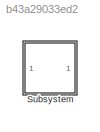
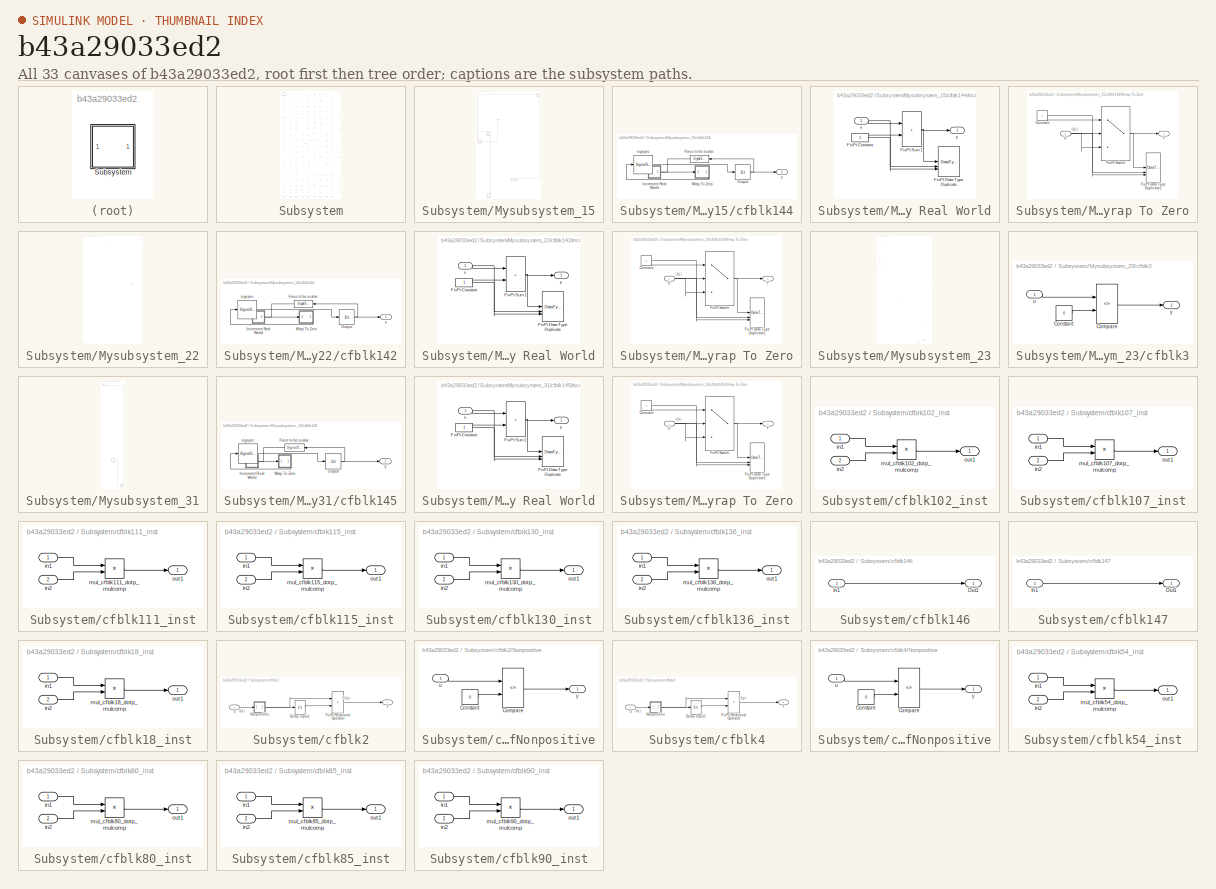
[diagram: thumbnail index - all 33 canvases of the model, root first then tree order]
MODEL slx_b43a29033ed2
KIND model
CONFIG AbsTol = auto
CONFIG EnableMultiTasking = off
CONFIG FixedStep = auto
CONFIG MaxStep = auto
CONFIG MinStep = auto
CONFIG RelTol = 1e-3
CONFIG SampleTimeConstraint = Unconstrained
CONFIG SolverName = VariableStepAuto
CONFIG StartTime = 0.0
CONFIG StopTime = 10.0
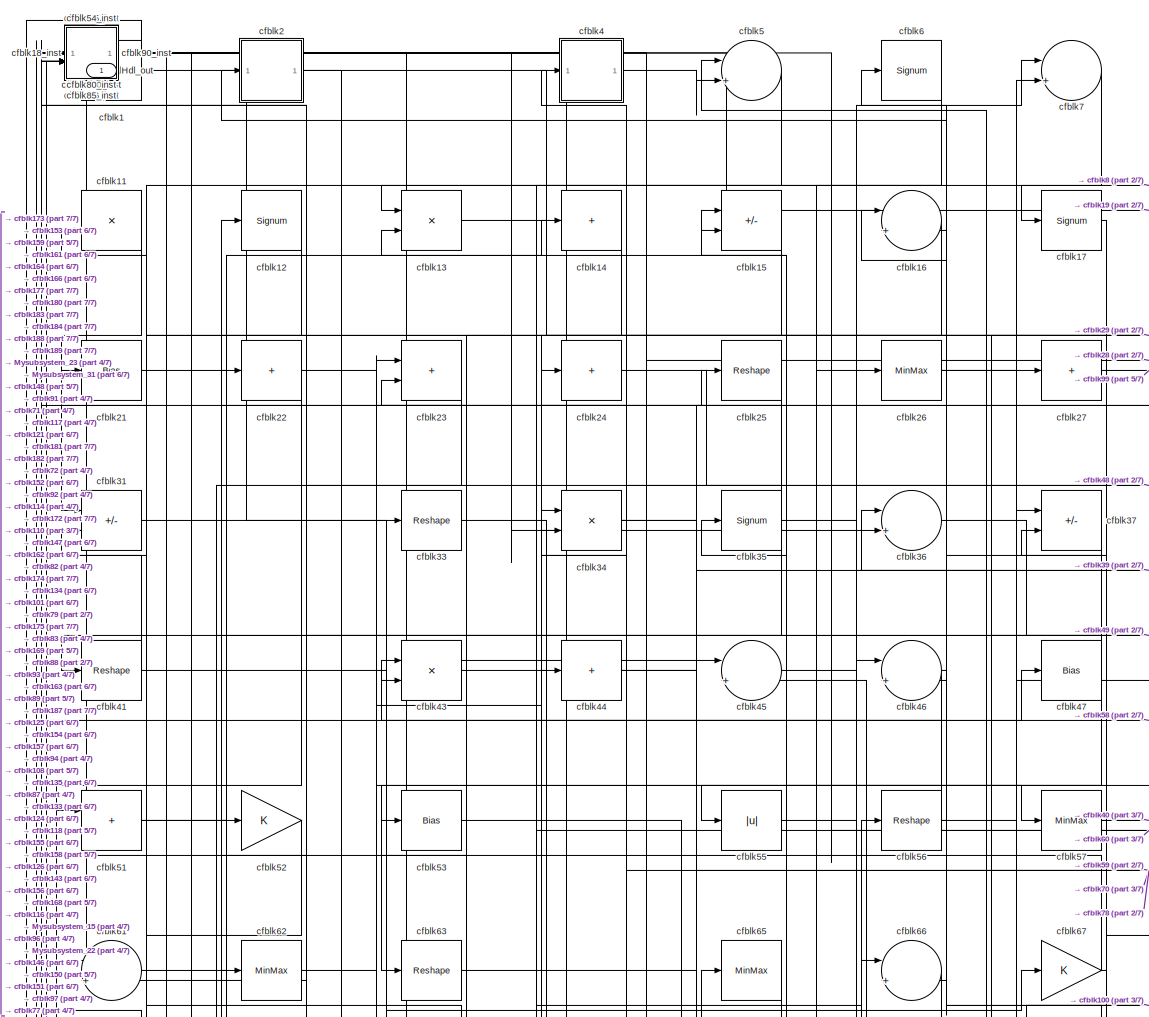
[diagram: Subsystem - part 1/7, top center region]
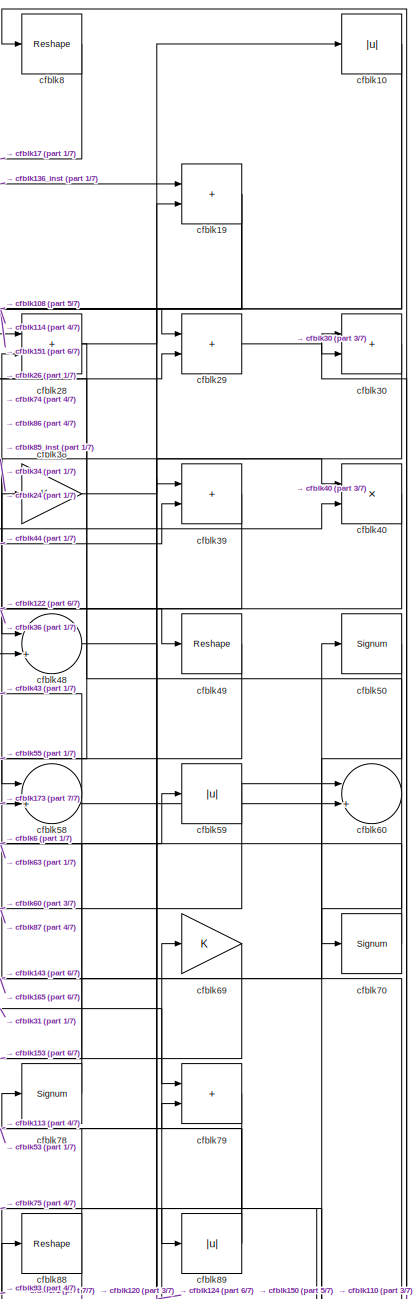
[diagram: Subsystem - part 2/7, top right region]
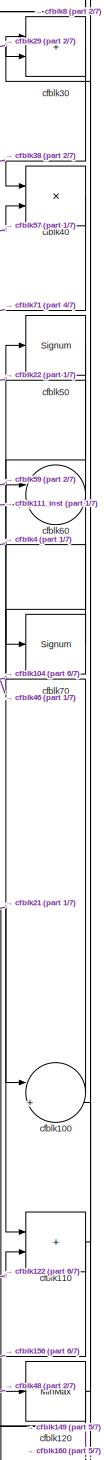
[diagram: Subsystem - part 3/7, middle right region]
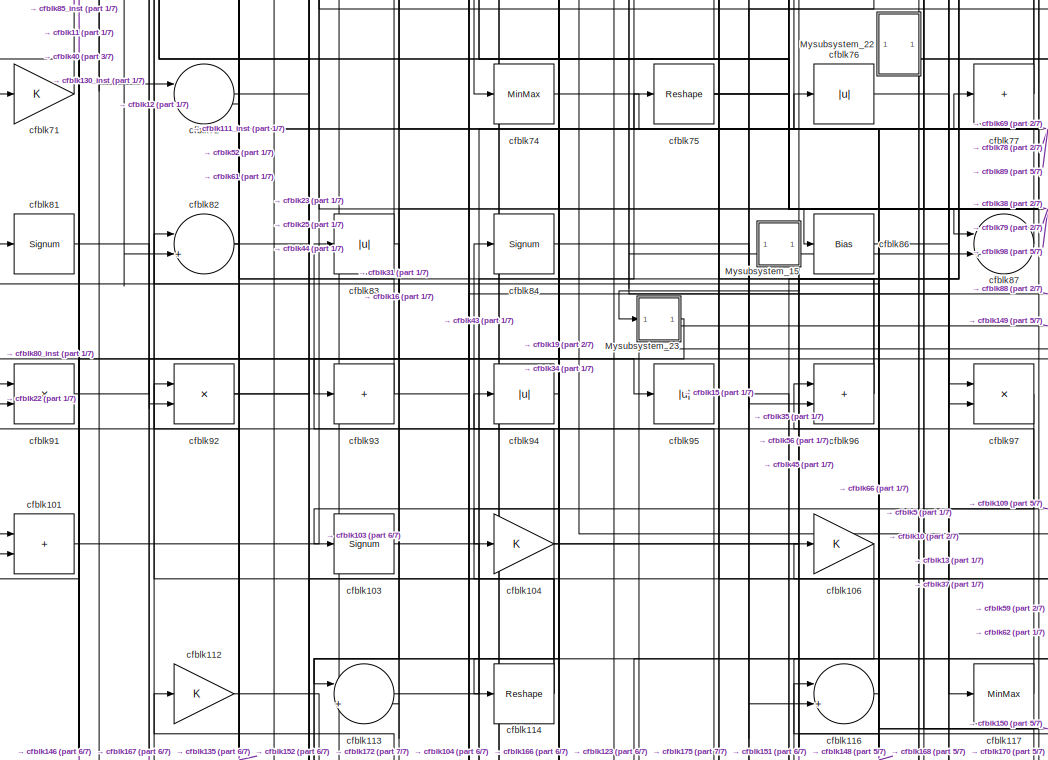
[diagram: Subsystem - part 4/7, central region]
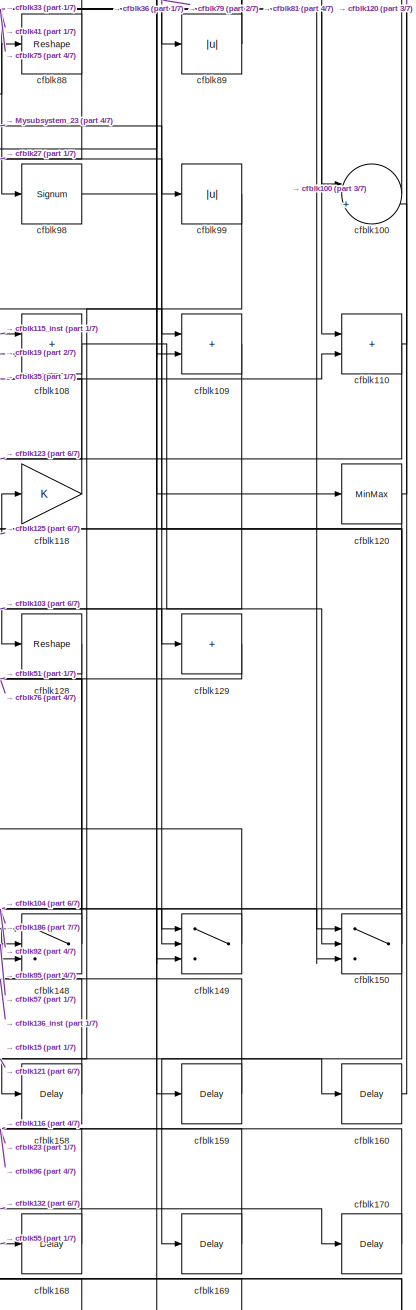
[diagram: Subsystem - part 5/7, middle right region]
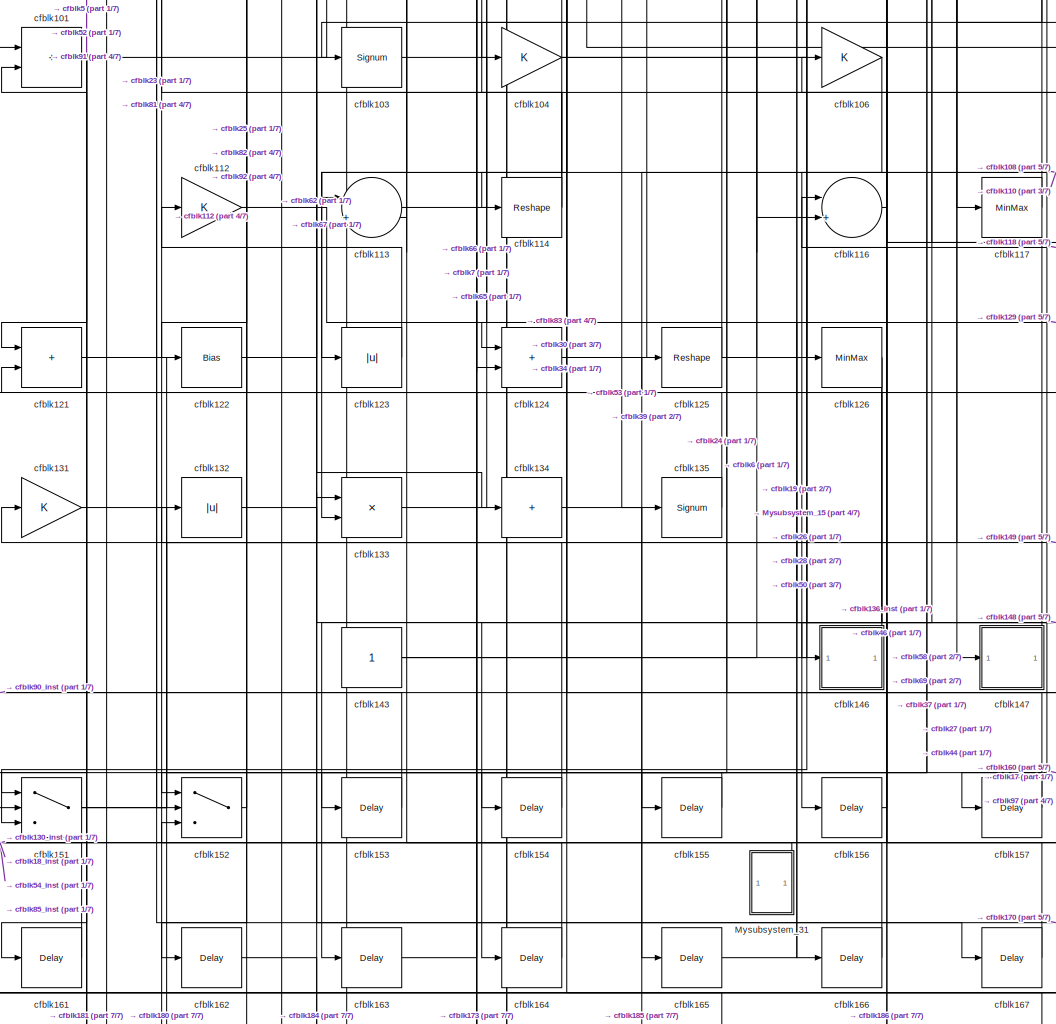
[diagram: Subsystem - part 6/7, bottom center region]
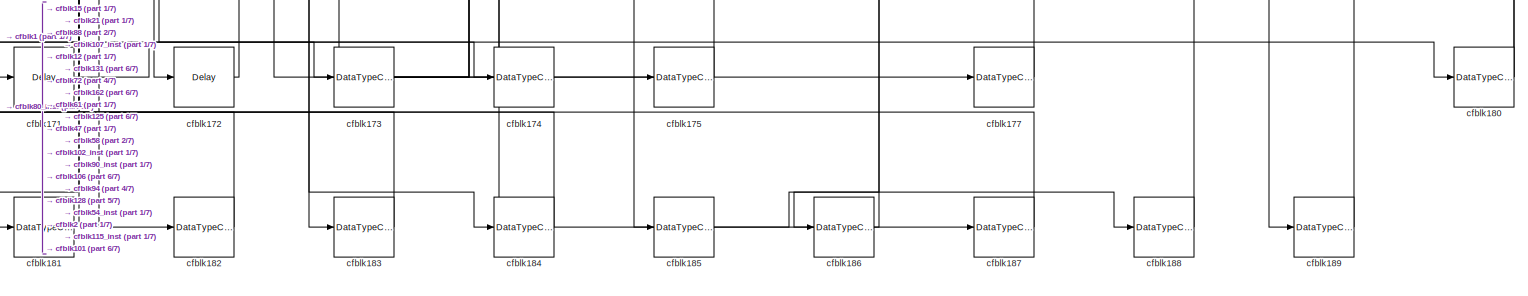
[diagram: Subsystem - part 7/7, full width, bottom band]
BLOCK [SubSystem] Subsystem
BLOCK [Outport] Subsystem/Hdl_out
  OutDataTypeStr = uint8
  SampleTime = 1
BLOCK [SubSystem] Subsystem/Mysubsystem_15
BLOCK [Outport] Subsystem/Mysubsystem_15/Out1
  SampleTime = 1
BLOCK [Outport] Subsystem/Mysubsystem_15/Out2
  Port = 2
  SampleTime = 1
BLOCK [Gain] Subsystem/Mysubsystem_15/cfblk127
BLOCK [SubSystem] Subsystem/Mysubsystem_15/cfblk144
BLOCK [SignalSpecification] Subsystem/Mysubsystem_15/cfblk144/Force to be scalar
  Dimensions = 1
  DisableCoverage = on
BLOCK [SubSystem] Subsystem/Mysubsystem_15/cfblk144/Increment Real World
BLOCK [Constant] Subsystem/Mysubsystem_15/cfblk144/Increment Real World/FixPt Constant
  DisableCoverage = on
  OutDataTypeStr = Inherit: Inherit via back propagation
  SampleTime = -1
BLOCK [DataTypeDuplicate] Subsystem/Mysubsystem_15/cfblk144/Increment Real World/FixPt Data Type Duplicate
  DisableCoverage = on
  NumInputPorts = 3
BLOCK [Sum] Subsystem/Mysubsystem_15/cfblk144/Increment Real World/FixPt Sum1
  IconShape = rectangular
  InputSameDT = on
  LockScale = on
  OutDataTypeStr = Inherit: Inherit via back propagation
BLOCK [Inport] Subsystem/Mysubsystem_15/cfblk144/Increment Real World/u
  OutDataTypeStr = uint8
  SampleTime = 1
BLOCK [Outport] Subsystem/Mysubsystem_15/cfblk144/Increment Real World/y
  SampleTime = 1
BLOCK [UnitDelay] Subsystem/Mysubsystem_15/cfblk144/Output
  HasFrameUpgradeWarning = on
  InitialCondition = 0.0
  SampleTime = tsamp
BLOCK [SubSystem] Subsystem/Mysubsystem_15/cfblk144/Wrap To Zero
BLOCK [Constant] Subsystem/Mysubsystem_15/cfblk144/Wrap To Zero/Constant
  DisableCoverage = on
  OutDataTypeStr = Inherit: Inherit via back propagation
  SampleTime = -1
  Value = 0
BLOCK [DataTypeDuplicate] Subsystem/Mysubsystem_15/cfblk144/Wrap To Zero/FixPt Data Type Duplicate1
  DisableCoverage = on
  NumInputPorts = 3
BLOCK [Switch] Subsystem/Mysubsystem_15/cfblk144/Wrap To Zero/FixPt Switch
  Criteria = u2 > Threshold
  InputSameDT = off
  OutDataTypeStr = Inherit: Inherit via back propagation
  SaturateOnIntegerOverflow = off
  Threshold = Threshold
  ZeroCross = off
BLOCK [Inport] Subsystem/Mysubsystem_15/cfblk144/Wrap To Zero/U
  OutDataTypeStr = uint8
  SampleTime = 1
BLOCK [Outport] Subsystem/Mysubsystem_15/cfblk144/Wrap To Zero/Y
  SampleTime = 1
BLOCK [SignalSpecification] Subsystem/Mysubsystem_15/cfblk144/sigspec
  Dimensions = 1
  OutDataTypeStr = uint8
BLOCK [Outport] Subsystem/Mysubsystem_15/cfblk144/y
  SampleTime = 1
BLOCK [Reshape] Subsystem/Mysubsystem_15/cfblk20
BLOCK [Reshape] Subsystem/Mysubsystem_15/cfblk64
BLOCK [MinMax] Subsystem/Mysubsystem_15/cfblk73
BLOCK [SubSystem] Subsystem/Mysubsystem_22
BLOCK [Outport] Subsystem/Mysubsystem_22/Out1
  SampleTime = 1
BLOCK [SubSystem] Subsystem/Mysubsystem_22/cfblk142
BLOCK [SignalSpecification] Subsystem/Mysubsystem_22/cfblk142/Force to be scalar
  Dimensions = 1
  DisableCoverage = on
BLOCK [SubSystem] Subsystem/Mysubsystem_22/cfblk142/Increment Real World
BLOCK [Constant] Subsystem/Mysubsystem_22/cfblk142/Increment Real World/FixPt Constant
  DisableCoverage = on
  OutDataTypeStr = Inherit: Inherit via back propagation
  SampleTime = -1
BLOCK [DataTypeDuplicate] Subsystem/Mysubsystem_22/cfblk142/Increment Real World/FixPt Data Type Duplicate
  DisableCoverage = on
  NumInputPorts = 3
BLOCK [Sum] Subsystem/Mysubsystem_22/cfblk142/Increment Real World/FixPt Sum1
  IconShape = rectangular
  InputSameDT = on
  LockScale = on
  OutDataTypeStr = Inherit: Inherit via back propagation
BLOCK [Inport] Subsystem/Mysubsystem_22/cfblk142/Increment Real World/u
  OutDataTypeStr = uint8
  SampleTime = 1
BLOCK [Outport] Subsystem/Mysubsystem_22/cfblk142/Increment Real World/y
  SampleTime = 1
BLOCK [UnitDelay] Subsystem/Mysubsystem_22/cfblk142/Output
  HasFrameUpgradeWarning = on
  InitialCondition = 0.0
  SampleTime = tsamp
BLOCK [SubSystem] Subsystem/Mysubsystem_22/cfblk142/Wrap To Zero
BLOCK [Constant] Subsystem/Mysubsystem_22/cfblk142/Wrap To Zero/Constant
  DisableCoverage = on
  OutDataTypeStr = Inherit: Inherit via back propagation
  SampleTime = -1
  Value = 0
BLOCK [DataTypeDuplicate] Subsystem/Mysubsystem_22/cfblk142/Wrap To Zero/FixPt Data Type Duplicate1
  DisableCoverage = on
  NumInputPorts = 3
BLOCK [Switch] Subsystem/Mysubsystem_22/cfblk142/Wrap To Zero/FixPt Switch
  Criteria = u2 > Threshold
  InputSameDT = off
  OutDataTypeStr = Inherit: Inherit via back propagation
  SaturateOnIntegerOverflow = off
  Threshold = Threshold
  ZeroCross = off
BLOCK [Inport] Subsystem/Mysubsystem_22/cfblk142/Wrap To Zero/U
  OutDataTypeStr = uint8
  SampleTime = 1
BLOCK [Outport] Subsystem/Mysubsystem_22/cfblk142/Wrap To Zero/Y
  SampleTime = 1
BLOCK [SignalSpecification] Subsystem/Mysubsystem_22/cfblk142/sigspec
  Dimensions = 1
  OutDataTypeStr = uint8
BLOCK [Outport] Subsystem/Mysubsystem_22/cfblk142/y
  SampleTime = 1
BLOCK [Gain] Subsystem/Mysubsystem_22/cfblk68
BLOCK [Abs] Subsystem/Mysubsystem_22/cfblk9
  SaturateOnIntegerOverflow = off
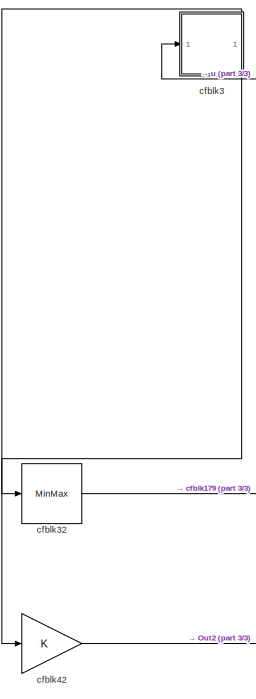
[diagram: Subsystem/Mysubsystem_23 - part 1/3, top left region]
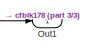
[diagram: Subsystem/Mysubsystem_23 - part 2/3, middle right region]
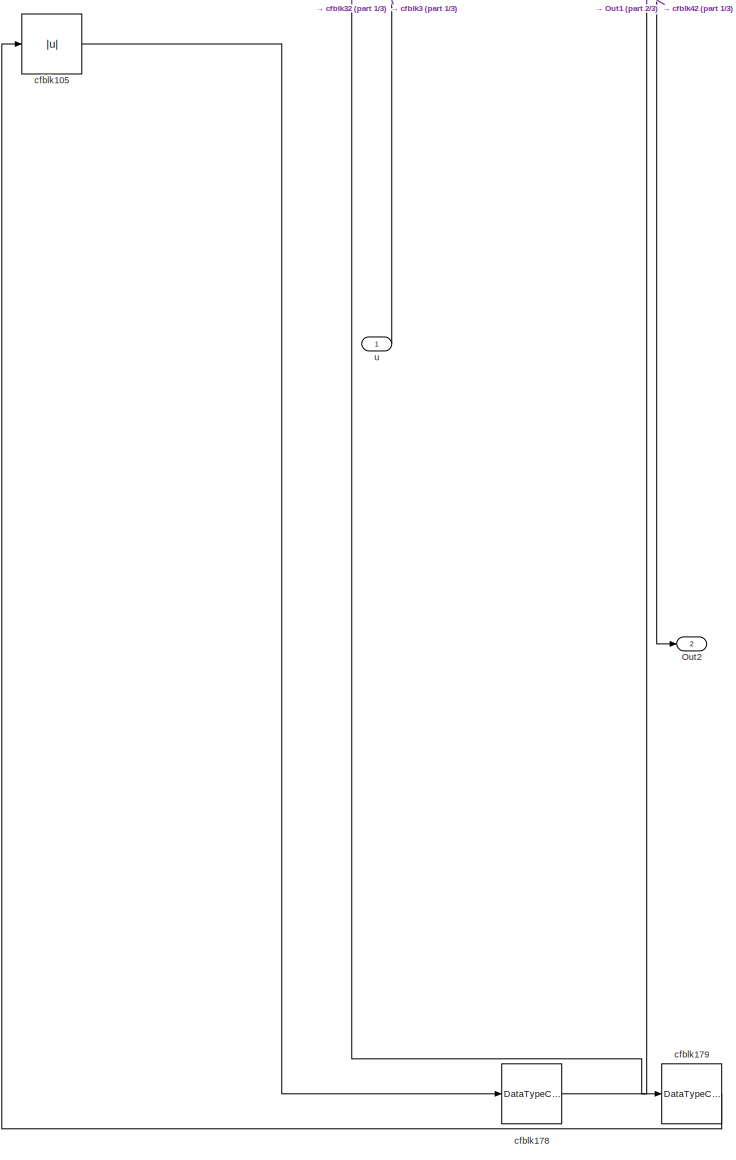
[diagram: Subsystem/Mysubsystem_23 - part 3/3, bottom center region]
BLOCK [SubSystem] Subsystem/Mysubsystem_23
BLOCK [Outport] Subsystem/Mysubsystem_23/Out1
  SampleTime = 1
BLOCK [Outport] Subsystem/Mysubsystem_23/Out2
  Port = 2
  SampleTime = 1
BLOCK [Abs] Subsystem/Mysubsystem_23/cfblk105
  SaturateOnIntegerOverflow = off
BLOCK [DataTypeConversion] Subsystem/Mysubsystem_23/cfblk178
  OutDataTypeStr = uint8
  RndMeth = Floor
  SaturateOnIntegerOverflow = off
BLOCK [DataTypeConversion] Subsystem/Mysubsystem_23/cfblk179
  OutDataTypeStr = uint8
  RndMeth = Floor
  SaturateOnIntegerOverflow = off
BLOCK [SubSystem] Subsystem/Mysubsystem_23/cfblk3
BLOCK [RelationalOperator] Subsystem/Mysubsystem_23/cfblk3/Compare
  Operator = <=
  OutDataTypeStr = boolean
BLOCK [Constant] Subsystem/Mysubsystem_23/cfblk3/Constant
  DisableCoverage = on
  OutDataTypeStr = Inherit: Inherit via back propagation
  PreserveConstantTs = on
  SampleTime = -1
  Value = 0
BLOCK [Inport] Subsystem/Mysubsystem_23/cfblk3/u
  OutDataTypeStr = fixdt(0, 16, 7)
  SampleTime = 1
BLOCK [Outport] Subsystem/Mysubsystem_23/cfblk3/y
  SampleTime = 1
BLOCK [MinMax] Subsystem/Mysubsystem_23/cfblk32
BLOCK [Gain] Subsystem/Mysubsystem_23/cfblk42
BLOCK [Inport] Subsystem/Mysubsystem_23/u
  OutDataTypeStr = fixdt(0, 16, 7)
  PortDimensions = 1
  SampleTime = 1
BLOCK [SubSystem] Subsystem/Mysubsystem_31
BLOCK [Outport] Subsystem/Mysubsystem_31/Out1
  SampleTime = 1
BLOCK [SubSystem] Subsystem/Mysubsystem_31/cfblk145
BLOCK [SignalSpecification] Subsystem/Mysubsystem_31/cfblk145/Force to be scalar
  Dimensions = 1
  DisableCoverage = on
BLOCK [SubSystem] Subsystem/Mysubsystem_31/cfblk145/Increment Real World
BLOCK [Constant] Subsystem/Mysubsystem_31/cfblk145/Increment Real World/FixPt Constant
  DisableCoverage = on
  OutDataTypeStr = Inherit: Inherit via back propagation
  SampleTime = -1
BLOCK [DataTypeDuplicate] Subsystem/Mysubsystem_31/cfblk145/Increment Real World/FixPt Data Type Duplicate
  DisableCoverage = on
  NumInputPorts = 3
BLOCK [Sum] Subsystem/Mysubsystem_31/cfblk145/Increment Real World/FixPt Sum1
  IconShape = rectangular
  InputSameDT = on
  LockScale = on
  OutDataTypeStr = Inherit: Inherit via back propagation
BLOCK [Inport] Subsystem/Mysubsystem_31/cfblk145/Increment Real World/u
  OutDataTypeStr = uint16
  SampleTime = 1
BLOCK [Outport] Subsystem/Mysubsystem_31/cfblk145/Increment Real World/y
  SampleTime = 1
BLOCK [UnitDelay] Subsystem/Mysubsystem_31/cfblk145/Output
  HasFrameUpgradeWarning = on
  InitialCondition = 0.0
  SampleTime = tsamp
BLOCK [SubSystem] Subsystem/Mysubsystem_31/cfblk145/Wrap To Zero
BLOCK [Constant] Subsystem/Mysubsystem_31/cfblk145/Wrap To Zero/Constant
  DisableCoverage = on
  OutDataTypeStr = Inherit: Inherit via back propagation
  SampleTime = -1
  Value = 0
BLOCK [DataTypeDuplicate] Subsystem/Mysubsystem_31/cfblk145/Wrap To Zero/FixPt Data Type Duplicate1
  DisableCoverage = on
  NumInputPorts = 3
BLOCK [Switch] Subsystem/Mysubsystem_31/cfblk145/Wrap To Zero/FixPt Switch
  Criteria = u2 > Threshold
  InputSameDT = off
  OutDataTypeStr = Inherit: Inherit via back propagation
  SaturateOnIntegerOverflow = off
  Threshold = Threshold
  ZeroCross = off
BLOCK [Inport] Subsystem/Mysubsystem_31/cfblk145/Wrap To Zero/U
  OutDataTypeStr = uint16
  SampleTime = 1
BLOCK [Outport] Subsystem/Mysubsystem_31/cfblk145/Wrap To Zero/Y
  SampleTime = 1
BLOCK [SignalSpecification] Subsystem/Mysubsystem_31/cfblk145/sigspec
  Dimensions = 1
  OutDataTypeStr = uint16
BLOCK [Outport] Subsystem/Mysubsystem_31/cfblk145/y
  SampleTime = 1
BLOCK [DataTypeConversion] Subsystem/Mysubsystem_31/cfblk176
  OutDataTypeStr = uint8
  RndMeth = Floor
  SaturateOnIntegerOverflow = off
BLOCK [Reference] Subsystem/cfblk1  REF=hdlsllib/Logic and Bit
Operations/Interval Test
  SourceBlock = hdlsllib/Logic and Bit\nOperations/Interval Test
  SourceType = Interval Test
BLOCK [Abs] Subsystem/cfblk10
  OutDataTypeStr = uint8
  SaturateOnIntegerOverflow = off
BLOCK [Sum] Subsystem/cfblk100
  Inputs = |++
  OutDataTypeStr = uint8
BLOCK [Sum] Subsystem/cfblk101
  IconShape = rectangular
  OutDataTypeStr = uint8
BLOCK [SubSystem] Subsystem/cfblk102_inst
BLOCK [Inport] Subsystem/cfblk102_inst/in1
  OutDataTypeStr = uint8
  SampleTime = 1
BLOCK [Inport] Subsystem/cfblk102_inst/in2
  OutDataTypeStr = uint8
  Port = 2
  SampleTime = 1
BLOCK [Product] Subsystem/cfblk102_inst/mul_cfblk102_dotp_mulcomp
  Inputs = **
  OutDataTypeStr = uint8
  SampleTime = 1
BLOCK [Outport] Subsystem/cfblk102_inst/out1
  OutDataTypeStr = uint8
  SampleTime = 1
BLOCK [Signum] Subsystem/cfblk103
BLOCK [Gain] Subsystem/cfblk104
  OutDataTypeStr = uint8
BLOCK [Gain] Subsystem/cfblk106
  OutDataTypeStr = uint8
BLOCK [SubSystem] Subsystem/cfblk107_inst
BLOCK [Inport] Subsystem/cfblk107_inst/in1
  OutDataTypeStr = uint8
  SampleTime = 1
BLOCK [Inport] Subsystem/cfblk107_inst/in2
  OutDataTypeStr = uint8
  Port = 2
  SampleTime = 1
BLOCK [Product] Subsystem/cfblk107_inst/mul_cfblk107_dotp_mulcomp
  Inputs = **
  OutDataTypeStr = uint8
  SampleTime = 1
BLOCK [Outport] Subsystem/cfblk107_inst/out1
  OutDataTypeStr = uint8
  SampleTime = 1
BLOCK [Sum] Subsystem/cfblk108
  IconShape = rectangular
  OutDataTypeStr = uint8
BLOCK [Sum] Subsystem/cfblk109
  IconShape = rectangular
  OutDataTypeStr = uint8
BLOCK [Product] Subsystem/cfblk11
  Inputs = */
  OutDataTypeStr = uint8
  RndMeth = Zero
  SaturateOnIntegerOverflow = on
BLOCK [Sum] Subsystem/cfblk110
  IconShape = rectangular
  OutDataTypeStr = uint8
BLOCK [SubSystem] Subsystem/cfblk111_inst
BLOCK [Inport] Subsystem/cfblk111_inst/in1
  OutDataTypeStr = uint8
  SampleTime = 1
BLOCK [Inport] Subsystem/cfblk111_inst/in2
  OutDataTypeStr = uint8
  Port = 2
  SampleTime = 1
BLOCK [Product] Subsystem/cfblk111_inst/mul_cfblk111_dotp_mulcomp
  Inputs = **
  OutDataTypeStr = uint8
  SampleTime = 1
BLOCK [Outport] Subsystem/cfblk111_inst/out1
  OutDataTypeStr = uint8
  SampleTime = 1
BLOCK [Gain] Subsystem/cfblk112
  OutDataTypeStr = uint8
BLOCK [Sum] Subsystem/cfblk113
  Inputs = |++
  OutDataTypeStr = uint8
BLOCK [Reshape] Subsystem/cfblk114
BLOCK [SubSystem] Subsystem/cfblk115_inst
BLOCK [Inport] Subsystem/cfblk115_inst/in1
  OutDataTypeStr = uint8
  SampleTime = 1
BLOCK [Inport] Subsystem/cfblk115_inst/in2
  OutDataTypeStr = uint8
  Port = 2
  SampleTime = 1
BLOCK [Product] Subsystem/cfblk115_inst/mul_cfblk115_dotp_mulcomp
  Inputs = **
  OutDataTypeStr = uint8
  SampleTime = 1
BLOCK [Outport] Subsystem/cfblk115_inst/out1
  OutDataTypeStr = uint8
  SampleTime = 1
BLOCK [Sum] Subsystem/cfblk116
  Inputs = |++
  OutDataTypeStr = uint8
BLOCK [MinMax] Subsystem/cfblk117
  OutDataTypeStr = uint8
BLOCK [Gain] Subsystem/cfblk118
  OutDataTypeStr = uint8
BLOCK [Signum] Subsystem/cfblk12
BLOCK [MinMax] Subsystem/cfblk120
  OutDataTypeStr = uint8
BLOCK [Sum] Subsystem/cfblk121
  IconShape = rectangular
  OutDataTypeStr = uint8
BLOCK [Bias] Subsystem/cfblk122
  Bias = 0.0
  SaturateOnIntegerOverflow = off
BLOCK [Abs] Subsystem/cfblk123
  OutDataTypeStr = uint8
  SaturateOnIntegerOverflow = off
BLOCK [Sum] Subsystem/cfblk124
  IconShape = rectangular
  OutDataTypeStr = uint8
BLOCK [Reshape] Subsystem/cfblk125
BLOCK [MinMax] Subsystem/cfblk126
  OutDataTypeStr = uint8
BLOCK [Reshape] Subsystem/cfblk128
BLOCK [Sum] Subsystem/cfblk129
  IconShape = rectangular
  Inputs = +
  OutDataTypeStr = uint8
BLOCK [Product] Subsystem/cfblk13
  Inputs = */
  OutDataTypeStr = uint8
  RndMeth = Zero
  SaturateOnIntegerOverflow = on
BLOCK [SubSystem] Subsystem/cfblk130_inst
BLOCK [Inport] Subsystem/cfblk130_inst/in1
  OutDataTypeStr = uint8
  SampleTime = 1
BLOCK [Inport] Subsystem/cfblk130_inst/in2
  OutDataTypeStr = uint8
  Port = 2
  SampleTime = 1
BLOCK [Product] Subsystem/cfblk130_inst/mul_cfblk130_dotp_mulcomp
  Inputs = **
  OutDataTypeStr = uint8
  SampleTime = 1
BLOCK [Outport] Subsystem/cfblk130_inst/out1
  OutDataTypeStr = uint8
  SampleTime = 1
BLOCK [Gain] Subsystem/cfblk131
  OutDataTypeStr = uint8
BLOCK [Abs] Subsystem/cfblk132
  OutDataTypeStr = uint8
  SaturateOnIntegerOverflow = off
BLOCK [Product] Subsystem/cfblk133
  Inputs = */
  OutDataTypeStr = uint8
  RndMeth = Zero
  SaturateOnIntegerOverflow = on
BLOCK [Sum] Subsystem/cfblk134
  IconShape = rectangular
  Inputs = +
  OutDataTypeStr = uint8
BLOCK [Signum] Subsystem/cfblk135
BLOCK [SubSystem] Subsystem/cfblk136_inst
BLOCK [Inport] Subsystem/cfblk136_inst/in1
  OutDataTypeStr = uint8
  SampleTime = 1
BLOCK [Inport] Subsystem/cfblk136_inst/in2
  OutDataTypeStr = uint8
  Port = 2
  SampleTime = 1
BLOCK [Product] Subsystem/cfblk136_inst/mul_cfblk136_dotp_mulcomp
  Inputs = **
  OutDataTypeStr = uint8
  SampleTime = 1
BLOCK [Outport] Subsystem/cfblk136_inst/out1
  OutDataTypeStr = uint8
  SampleTime = 1
BLOCK [Sum] Subsystem/cfblk14
  IconShape = rectangular
  Inputs = +
  OutDataTypeStr = uint8
BLOCK [Constant] Subsystem/cfblk143
  OutDataTypeStr = uint8
  SampleTime = -1
BLOCK [SubSystem] Subsystem/cfblk146
BLOCK [Inport] Subsystem/cfblk146/In1
  OutDataTypeStr = uint8
  PortDimensions = 1
  SampleTime = 1
BLOCK [Outport] Subsystem/cfblk146/Out1
  SampleTime = 1
BLOCK [SubSystem] Subsystem/cfblk147
BLOCK [Inport] Subsystem/cfblk147/In1
  OutDataTypeStr = uint8
  PortDimensions = 1
  SampleTime = 1
BLOCK [Outport] Subsystem/cfblk147/Out1
  SampleTime = 1
BLOCK [Switch] Subsystem/cfblk148
  InputSameDT = off
  OutDataTypeStr = uint8
  SaturateOnIntegerOverflow = off
BLOCK [Switch] Subsystem/cfblk149
  InputSameDT = off
  OutDataTypeStr = uint8
  SaturateOnIntegerOverflow = off
BLOCK [Sum] Subsystem/cfblk15
  IconShape = rectangular
  Inputs = +-
  OutDataTypeStr = uint8
BLOCK [Switch] Subsystem/cfblk150
  InputSameDT = off
  OutDataTypeStr = uint8
  SaturateOnIntegerOverflow = off
BLOCK [Switch] Subsystem/cfblk151
  InputSameDT = off
  OutDataTypeStr = uint8
  SaturateOnIntegerOverflow = off
BLOCK [Switch] Subsystem/cfblk152
  InputSameDT = off
  OutDataTypeStr = uint8
  SaturateOnIntegerOverflow = off
BLOCK [Delay] Subsystem/cfblk153
  InputPortMap = u0
  SampleTime = 1
BLOCK [Delay] Subsystem/cfblk154
  InputPortMap = u0
  SampleTime = 1
BLOCK [Delay] Subsystem/cfblk155
  InputPortMap = u0
  SampleTime = 1
BLOCK [Delay] Subsystem/cfblk156
  InputPortMap = u0
  SampleTime = 1
BLOCK [Delay] Subsystem/cfblk157
  InputPortMap = u0
  SampleTime = 1
BLOCK [Delay] Subsystem/cfblk158
  InputPortMap = u0
  SampleTime = 1
BLOCK [Delay] Subsystem/cfblk159
  InputPortMap = u0
  SampleTime = 1
BLOCK [Sum] Subsystem/cfblk16
  Inputs = |++
  OutDataTypeStr = uint8
BLOCK [Delay] Subsystem/cfblk160
  InputPortMap = u0
  SampleTime = 1
BLOCK [Delay] Subsystem/cfblk161
  InputPortMap = u0
  SampleTime = 1
BLOCK [Delay] Subsystem/cfblk162
  InputPortMap = u0
  SampleTime = 1
BLOCK [Delay] Subsystem/cfblk163
  InputPortMap = u0
  SampleTime = 1
BLOCK [Delay] Subsystem/cfblk164
  InputPortMap = u0
  SampleTime = 1
BLOCK [Delay] Subsystem/cfblk165
  InputPortMap = u0
  SampleTime = 1
BLOCK [Delay] Subsystem/cfblk166
  InputPortMap = u0
  SampleTime = 1
BLOCK [Delay] Subsystem/cfblk167
  InputPortMap = u0
  SampleTime = 1
BLOCK [Delay] Subsystem/cfblk168
  InputPortMap = u0
  SampleTime = 1
BLOCK [Delay] Subsystem/cfblk169
  InputPortMap = u0
  SampleTime = 1
BLOCK [Signum] Subsystem/cfblk17
BLOCK [Delay] Subsystem/cfblk170
  InputPortMap = u0
  SampleTime = 1
BLOCK [Delay] Subsystem/cfblk171
  InputPortMap = u0
  SampleTime = 1
BLOCK [Delay] Subsystem/cfblk172
  InputPortMap = u0
  SampleTime = 1
BLOCK [DataTypeConversion] Subsystem/cfblk173
  OutDataTypeStr = uint8
  RndMeth = Floor
  SaturateOnIntegerOverflow = off
BLOCK [DataTypeConversion] Subsystem/cfblk174
  OutDataTypeStr = uint8
  RndMeth = Floor
  SaturateOnIntegerOverflow = off
BLOCK [DataTypeConversion] Subsystem/cfblk175
  OutDataTypeStr = uint8
  RndMeth = Floor
  SaturateOnIntegerOverflow = off
BLOCK [DataTypeConversion] Subsystem/cfblk177
  OutDataTypeStr = uint8
  RndMeth = Floor
  SaturateOnIntegerOverflow = off
BLOCK [DataTypeConversion] Subsystem/cfblk180
  OutDataTypeStr = uint8
  RndMeth = Floor
  SaturateOnIntegerOverflow = off
BLOCK [DataTypeConversion] Subsystem/cfblk181
  OutDataTypeStr = uint8
  RndMeth = Floor
  SaturateOnIntegerOverflow = off
BLOCK [DataTypeConversion] Subsystem/cfblk182
  OutDataTypeStr = uint8
  RndMeth = Floor
  SaturateOnIntegerOverflow = off
BLOCK [DataTypeConversion] Subsystem/cfblk183
  OutDataTypeStr = uint8
  RndMeth = Floor
  SaturateOnIntegerOverflow = off
BLOCK [DataTypeConversion] Subsystem/cfblk184
  OutDataTypeStr = uint8
  RndMeth = Floor
  SaturateOnIntegerOverflow = off
BLOCK [DataTypeConversion] Subsystem/cfblk185
  OutDataTypeStr = uint8
  RndMeth = Floor
  SaturateOnIntegerOverflow = off
BLOCK [DataTypeConversion] Subsystem/cfblk186
  OutDataTypeStr = uint8
  RndMeth = Floor
  SaturateOnIntegerOverflow = off
BLOCK [DataTypeConversion] Subsystem/cfblk187
  OutDataTypeStr = uint8
  RndMeth = Floor
  SaturateOnIntegerOverflow = off
BLOCK [DataTypeConversion] Subsystem/cfblk188
  OutDataTypeStr = uint8
  RndMeth = Floor
  SaturateOnIntegerOverflow = off
BLOCK [DataTypeConversion] Subsystem/cfblk189
  OutDataTypeStr = uint8
  RndMeth = Floor
  SaturateOnIntegerOverflow = off
BLOCK [SubSystem] Subsystem/cfblk18_inst
BLOCK [Inport] Subsystem/cfblk18_inst/in1
  OutDataTypeStr = uint8
  SampleTime = 1
BLOCK [Inport] Subsystem/cfblk18_inst/in2
  OutDataTypeStr = uint8
  Port = 2
  SampleTime = 1
BLOCK [Product] Subsystem/cfblk18_inst/mul_cfblk18_dotp_mulcomp
  Inputs = **
  OutDataTypeStr = uint8
  SampleTime = 1
BLOCK [Outport] Subsystem/cfblk18_inst/out1
  OutDataTypeStr = uint8
  SampleTime = 1
BLOCK [Sum] Subsystem/cfblk19
  IconShape = rectangular
  OutDataTypeStr = uint8
BLOCK [SubSystem] Subsystem/cfblk2
BLOCK [UnitDelay] Subsystem/cfblk2/Delay Input1
  Description = Store in Global RAM
  DisableCoverage = on
  HasFrameUpgradeWarning = on
  InitialCondition = vinit
  SampleTime = -1
BLOCK [RelationalOperator] Subsystem/cfblk2/FixPt Relational Operator
  InputSameDT = off
  Operator = >
  OutDataTypeStr = fixdt(0, 8)
  ZeroCross = off
BLOCK [SubSystem] Subsystem/cfblk2/Nonpositive
BLOCK [RelationalOperator] Subsystem/cfblk2/Nonpositive/Compare
  Operator = <=
  OutDataTypeStr = boolean
  ZeroCross = off
BLOCK [Constant] Subsystem/cfblk2/Nonpositive/Constant
  DisableCoverage = on
  OutDataTypeStr = Inherit: Inherit via back propagation
  PreserveConstantTs = on
  SampleTime = -1
  Value = 0
BLOCK [Inport] Subsystem/cfblk2/Nonpositive/u
  OutDataTypeStr = uint8
  SampleTime = 1
BLOCK [Outport] Subsystem/cfblk2/Nonpositive/y
  SampleTime = 1
BLOCK [Inport] Subsystem/cfblk2/U
  OutDataTypeStr = uint8
  SampleTime = 1
BLOCK [Outport] Subsystem/cfblk2/Y
  SampleTime = 1
BLOCK [Bias] Subsystem/cfblk21
  Bias = 0.0
  SaturateOnIntegerOverflow = off
BLOCK [Sum] Subsystem/cfblk22
  IconShape = rectangular
  Inputs = +
  OutDataTypeStr = uint8
BLOCK [Sum] Subsystem/cfblk23
  IconShape = rectangular
  OutDataTypeStr = uint8
BLOCK [Sum] Subsystem/cfblk24
  IconShape = rectangular
  Inputs = +
  OutDataTypeStr = uint8
BLOCK [Reshape] Subsystem/cfblk25
BLOCK [MinMax] Subsystem/cfblk26
  OutDataTypeStr = uint8
BLOCK [Sum] Subsystem/cfblk27
  IconShape = rectangular
  Inputs = +
  OutDataTypeStr = uint8
BLOCK [Sum] Subsystem/cfblk28
  IconShape = rectangular
  OutDataTypeStr = uint8
BLOCK [Sum] Subsystem/cfblk29
  IconShape = rectangular
  OutDataTypeStr = uint8
BLOCK [Sum] Subsystem/cfblk30
  IconShape = rectangular
  OutDataTypeStr = uint8
BLOCK [Sum] Subsystem/cfblk31
  IconShape = rectangular
  Inputs = +-
  OutDataTypeStr = uint8
BLOCK [Reshape] Subsystem/cfblk33
BLOCK [Product] Subsystem/cfblk34
  Inputs = */
  OutDataTypeStr = uint8
  RndMeth = Zero
  SaturateOnIntegerOverflow = on
BLOCK [Signum] Subsystem/cfblk35
BLOCK [Sum] Subsystem/cfblk36
  Inputs = |++
  OutDataTypeStr = uint8
BLOCK [Sum] Subsystem/cfblk37
  IconShape = rectangular
  Inputs = +-
  OutDataTypeStr = uint8
BLOCK [Gain] Subsystem/cfblk38
  OutDataTypeStr = uint8
BLOCK [Sum] Subsystem/cfblk39
  IconShape = rectangular
  OutDataTypeStr = uint8
BLOCK [SubSystem] Subsystem/cfblk4
BLOCK [UnitDelay] Subsystem/cfblk4/Delay Input1
  Description = Store in Global RAM
  DisableCoverage = on
  HasFrameUpgradeWarning = on
  InitialCondition = vinit
  SampleTime = -1
BLOCK [RelationalOperator] Subsystem/cfblk4/FixPt Relational Operator
  InputSameDT = off
  Operator = >
  OutDataTypeStr = fixdt(0, 8)
  ZeroCross = off
BLOCK [SubSystem] Subsystem/cfblk4/Nonpositive
BLOCK [RelationalOperator] Subsystem/cfblk4/Nonpositive/Compare
  Operator = <=
  OutDataTypeStr = boolean
  ZeroCross = off
BLOCK [Constant] Subsystem/cfblk4/Nonpositive/Constant
  DisableCoverage = on
  OutDataTypeStr = Inherit: Inherit via back propagation
  PreserveConstantTs = on
  SampleTime = -1
  Value = 0
BLOCK [Inport] Subsystem/cfblk4/Nonpositive/u
  OutDataTypeStr = uint8
  SampleTime = 1
BLOCK [Outport] Subsystem/cfblk4/Nonpositive/y
  SampleTime = 1
BLOCK [Inport] Subsystem/cfblk4/U
  OutDataTypeStr = uint8
  SampleTime = 1
BLOCK [Outport] Subsystem/cfblk4/Y
  SampleTime = 1
BLOCK [Product] Subsystem/cfblk40
  Inputs = */
  OutDataTypeStr = uint8
  RndMeth = Zero
  SaturateOnIntegerOverflow = on
BLOCK [Reshape] Subsystem/cfblk41
BLOCK [Product] Subsystem/cfblk43
  Inputs = */
  OutDataTypeStr = uint8
  RndMeth = Zero
  SaturateOnIntegerOverflow = on
BLOCK [Sum] Subsystem/cfblk44
  IconShape = rectangular
  Inputs = +
  OutDataTypeStr = uint8
BLOCK [Sum] Subsystem/cfblk45
  Inputs = |++
  OutDataTypeStr = uint8
BLOCK [Sum] Subsystem/cfblk46
  Inputs = |++
  OutDataTypeStr = uint8
BLOCK [Bias] Subsystem/cfblk47
  Bias = 0.0
  SaturateOnIntegerOverflow = off
BLOCK [Sum] Subsystem/cfblk48
  Inputs = |++
  OutDataTypeStr = uint8
BLOCK [Reshape] Subsystem/cfblk49
BLOCK [Sum] Subsystem/cfblk5
  Inputs = |++
  OutDataTypeStr = uint8
BLOCK [Signum] Subsystem/cfblk50
BLOCK [Sum] Subsystem/cfblk51
  IconShape = rectangular
  OutDataTypeStr = uint8
BLOCK [Gain] Subsystem/cfblk52
  OutDataTypeStr = uint8
BLOCK [Bias] Subsystem/cfblk53
  Bias = 0.0
  SaturateOnIntegerOverflow = off
BLOCK [SubSystem] Subsystem/cfblk54_inst
BLOCK [Inport] Subsystem/cfblk54_inst/in1
  OutDataTypeStr = uint8
  SampleTime = 1
BLOCK [Inport] Subsystem/cfblk54_inst/in2
  OutDataTypeStr = uint8
  Port = 2
  SampleTime = 1
BLOCK [Product] Subsystem/cfblk54_inst/mul_cfblk54_dotp_mulcomp
  Inputs = **
  OutDataTypeStr = uint8
  SampleTime = 1
BLOCK [Outport] Subsystem/cfblk54_inst/out1
  OutDataTypeStr = uint8
  SampleTime = 1
BLOCK [Abs] Subsystem/cfblk55
  OutDataTypeStr = uint8
  SaturateOnIntegerOverflow = off
BLOCK [Reshape] Subsystem/cfblk56
BLOCK [MinMax] Subsystem/cfblk57
  OutDataTypeStr = uint8
BLOCK [Sum] Subsystem/cfblk58
  Inputs = |++
  OutDataTypeStr = uint8
BLOCK [Abs] Subsystem/cfblk59
  OutDataTypeStr = uint8
  SaturateOnIntegerOverflow = off
BLOCK [Signum] Subsystem/cfblk6
BLOCK [Sum] Subsystem/cfblk60
  Inputs = |++
  OutDataTypeStr = uint8
BLOCK [Sum] Subsystem/cfblk61
  Inputs = |++
  OutDataTypeStr = uint8
BLOCK [MinMax] Subsystem/cfblk62
  OutDataTypeStr = uint8
BLOCK [Reshape] Subsystem/cfblk63
BLOCK [MinMax] Subsystem/cfblk65
  OutDataTypeStr = uint8
BLOCK [Sum] Subsystem/cfblk66
  Inputs = |++
  OutDataTypeStr = uint8
BLOCK [Gain] Subsystem/cfblk67
  OutDataTypeStr = uint8
BLOCK [Gain] Subsystem/cfblk69
  OutDataTypeStr = uint8
BLOCK [Sum] Subsystem/cfblk7
  Inputs = |++
  OutDataTypeStr = uint8
BLOCK [Signum] Subsystem/cfblk70
BLOCK [Gain] Subsystem/cfblk71
  OutDataTypeStr = uint8
BLOCK [Sum] Subsystem/cfblk72
  Inputs = |++
  OutDataTypeStr = uint8
BLOCK [MinMax] Subsystem/cfblk74
  OutDataTypeStr = uint8
BLOCK [Reshape] Subsystem/cfblk75
BLOCK [Abs] Subsystem/cfblk76
  OutDataTypeStr = uint8
  SaturateOnIntegerOverflow = off
BLOCK [Sum] Subsystem/cfblk77
  IconShape = rectangular
  Inputs = +
  OutDataTypeStr = uint8
BLOCK [Signum] Subsystem/cfblk78
BLOCK [Sum] Subsystem/cfblk79
  IconShape = rectangular
  OutDataTypeStr = uint8
BLOCK [Reshape] Subsystem/cfblk8
BLOCK [SubSystem] Subsystem/cfblk80_inst
BLOCK [Inport] Subsystem/cfblk80_inst/in1
  OutDataTypeStr = uint8
  SampleTime = 1
BLOCK [Inport] Subsystem/cfblk80_inst/in2
  OutDataTypeStr = uint8
  Port = 2
  SampleTime = 1
BLOCK [Product] Subsystem/cfblk80_inst/mul_cfblk80_dotp_mulcomp
  Inputs = **
  OutDataTypeStr = uint8
  SampleTime = 1
BLOCK [Outport] Subsystem/cfblk80_inst/out1
  OutDataTypeStr = uint8
  SampleTime = 1
BLOCK [Signum] Subsystem/cfblk81
BLOCK [Sum] Subsystem/cfblk82
  Inputs = |++
  OutDataTypeStr = uint8
BLOCK [Abs] Subsystem/cfblk83
  OutDataTypeStr = uint8
  SaturateOnIntegerOverflow = off
BLOCK [Signum] Subsystem/cfblk84
BLOCK [SubSystem] Subsystem/cfblk85_inst
BLOCK [Inport] Subsystem/cfblk85_inst/in1
  OutDataTypeStr = uint8
  SampleTime = 1
BLOCK [Inport] Subsystem/cfblk85_inst/in2
  OutDataTypeStr = uint8
  Port = 2
  SampleTime = 1
BLOCK [Product] Subsystem/cfblk85_inst/mul_cfblk85_dotp_mulcomp
  Inputs = **
  OutDataTypeStr = uint8
  SampleTime = 1
BLOCK [Outport] Subsystem/cfblk85_inst/out1
  OutDataTypeStr = uint8
  SampleTime = 1
BLOCK [Bias] Subsystem/cfblk86
  Bias = 0.0
  SaturateOnIntegerOverflow = off
BLOCK [Sum] Subsystem/cfblk87
  Inputs = |++
  OutDataTypeStr = uint8
BLOCK [Reshape] Subsystem/cfblk88
BLOCK [Abs] Subsystem/cfblk89
  OutDataTypeStr = uint8
  SaturateOnIntegerOverflow = off
BLOCK [SubSystem] Subsystem/cfblk90_inst
BLOCK [Inport] Subsystem/cfblk90_inst/in1
  OutDataTypeStr = uint8
  SampleTime = 1
BLOCK [Inport] Subsystem/cfblk90_inst/in2
  OutDataTypeStr = uint8
  Port = 2
  SampleTime = 1
BLOCK [Product] Subsystem/cfblk90_inst/mul_cfblk90_dotp_mulcomp
  Inputs = **
  OutDataTypeStr = uint8
  SampleTime = 1
BLOCK [Outport] Subsystem/cfblk90_inst/out1
  OutDataTypeStr = uint8
  SampleTime = 1
BLOCK [Product] Subsystem/cfblk91
  Inputs = */
  OutDataTypeStr = uint8
  RndMeth = Zero
  SaturateOnIntegerOverflow = on
BLOCK [Product] Subsystem/cfblk92
  Inputs = */
  OutDataTypeStr = uint8
  RndMeth = Zero
  SaturateOnIntegerOverflow = on
BLOCK [Sum] Subsystem/cfblk93
  IconShape = rectangular
  Inputs = +
  OutDataTypeStr = uint8
BLOCK [Abs] Subsystem/cfblk94
  OutDataTypeStr = uint8
  SaturateOnIntegerOverflow = off
BLOCK [Abs] Subsystem/cfblk95
  OutDataTypeStr = uint8
  SaturateOnIntegerOverflow = off
BLOCK [Sum] Subsystem/cfblk96
  IconShape = rectangular
  OutDataTypeStr = uint8
BLOCK [Product] Subsystem/cfblk97
  Inputs = */
  OutDataTypeStr = uint8
  RndMeth = Zero
  SaturateOnIntegerOverflow = on
BLOCK [Signum] Subsystem/cfblk98
BLOCK [Abs] Subsystem/cfblk99
  OutDataTypeStr = uint8
  SaturateOnIntegerOverflow = off
ANNOTATION Subsystem/Mysubsystem_15/cfblk144/Wrap To Zero: U(k)
ANNOTATION Subsystem/Mysubsystem_22/cfblk142/Wrap To Zero: U(k)
ANNOTATION Subsystem/Mysubsystem_31/cfblk145/Wrap To Zero: U(k)
ANNOTATION Subsystem/cfblk2: Edge
ANNOTATION Subsystem/cfblk2: U(k)
ANNOTATION Subsystem/cfblk4: Edge
ANNOTATION Subsystem/cfblk4: U(k)
LINE Subsystem/Mysubsystem_15/cfblk127:1 -> Subsystem/Mysubsystem_15/Out2:1
LINE Subsystem/Mysubsystem_15/cfblk144:1 -> Subsystem/Mysubsystem_15/cfblk64:1
LINE Subsystem/Mysubsystem_15/cfblk20:1 -> Subsystem/Mysubsystem_15/cfblk127:1
LINE Subsystem/Mysubsystem_15/cfblk64:1 -> Subsystem/Mysubsystem_15/cfblk73:1
NET Subsystem/Mysubsystem_15/cfblk73:1 -> Subsystem/Mysubsystem_15/Out1:1, Subsystem/Mysubsystem_15/cfblk20:1
LINE Subsystem/Mysubsystem_15:1 -> Subsystem/cfblk45:2
NET Subsystem/Mysubsystem_15:2 -> Subsystem/Mysubsystem_23:1, Subsystem/cfblk151:3
LINE Subsystem/Mysubsystem_22/cfblk142:1 -> Subsystem/Mysubsystem_22/cfblk9:1
LINE Subsystem/Mysubsystem_22/cfblk68:1 -> Subsystem/Mysubsystem_22/Out1:1
LINE Subsystem/Mysubsystem_22/cfblk9:1 -> Subsystem/Mysubsystem_22/cfblk68:1
LINE Subsystem/Mysubsystem_22:1 -> Subsystem/cfblk5:1
LINE Subsystem/Mysubsystem_23/cfblk105:1 -> Subsystem/Mysubsystem_23/cfblk178:1
LINE Subsystem/Mysubsystem_23/cfblk178:1 -> Subsystem/Mysubsystem_23/Out1:1
LINE Subsystem/Mysubsystem_23/cfblk179:1 -> Subsystem/Mysubsystem_23/cfblk105:1
LINE Subsystem/Mysubsystem_23/cfblk32:1 -> Subsystem/Mysubsystem_23/cfblk179:1
NET Subsystem/Mysubsystem_23/cfblk3:1 -> Subsystem/Mysubsystem_23/cfblk32:1, Subsystem/Mysubsystem_23/cfblk42:1
LINE Subsystem/Mysubsystem_23/cfblk42:1 -> Subsystem/Mysubsystem_23/Out2:1
LINE Subsystem/Mysubsystem_23/u:1 -> Subsystem/Mysubsystem_23/cfblk3:1
LINE Subsystem/Mysubsystem_23:1 -> Subsystem/cfblk80_inst:2
LINE Subsystem/Mysubsystem_23:2 -> Subsystem/cfblk149:2
LINE Subsystem/Mysubsystem_31/cfblk145:1 -> Subsystem/Mysubsystem_31/cfblk176:1
LINE Subsystem/Mysubsystem_31/cfblk176:1 -> Subsystem/Mysubsystem_31/Out1:1
LINE Subsystem/Mysubsystem_31:1 -> Subsystem/cfblk54_inst:1
LINE Subsystem/cfblk100:1 -> Subsystem/cfblk46:2
LINE Subsystem/cfblk101:1 -> Subsystem/cfblk67:1
LINE Subsystem/cfblk102_inst/in1:1 -> Subsystem/cfblk102_inst/mul_cfblk102_dotp_mulcomp:1
LINE Subsystem/cfblk102_inst/in2:1 -> Subsystem/cfblk102_inst/mul_cfblk102_dotp_mulcomp:2
LINE Subsystem/cfblk102_inst/mul_cfblk102_dotp_mulcomp:1 -> Subsystem/cfblk102_inst/out1:1
LINE Subsystem/cfblk102_inst:1 -> Subsystem/cfblk187:1
LINE Subsystem/cfblk103:1 -> Subsystem/cfblk129:1
NET Subsystem/cfblk104:1 -> Subsystem/cfblk133:2, Subsystem/cfblk148:3, Subsystem/cfblk50:1, Subsystem/cfblk83:1
LINE Subsystem/cfblk106:1 -> Subsystem/cfblk185:1
LINE Subsystem/cfblk107_inst/in1:1 -> Subsystem/cfblk107_inst/mul_cfblk107_dotp_mulcomp:1
LINE Subsystem/cfblk107_inst/in2:1 -> Subsystem/cfblk107_inst/mul_cfblk107_dotp_mulcomp:2
LINE Subsystem/cfblk107_inst/mul_cfblk107_dotp_mulcomp:1 -> Subsystem/cfblk107_inst/out1:1
LINE Subsystem/cfblk107_inst:1 -> Subsystem/cfblk182:1
NET Subsystem/cfblk108:1 -> Subsystem/cfblk123:1, Subsystem/cfblk150:2
LINE Subsystem/cfblk109:1 -> Subsystem/cfblk158:1
NET Subsystem/cfblk10:1 -> Subsystem/cfblk74:1, Subsystem/cfblk86:1
NET Subsystem/cfblk110:1 -> Subsystem/cfblk156:1, Subsystem/cfblk8:1
LINE Subsystem/cfblk111_inst/in1:1 -> Subsystem/cfblk111_inst/mul_cfblk111_dotp_mulcomp:1
LINE Subsystem/cfblk111_inst/in2:1 -> Subsystem/cfblk111_inst/mul_cfblk111_dotp_mulcomp:2
LINE Subsystem/cfblk111_inst/mul_cfblk111_dotp_mulcomp:1 -> Subsystem/cfblk111_inst/out1:1
NET Subsystem/cfblk111_inst:1 -> Subsystem/cfblk45:1, Subsystem/cfblk60:2
LINE Subsystem/cfblk112:1 -> Subsystem/cfblk166:1
LINE Subsystem/cfblk113:1 -> Subsystem/cfblk69:1
NET Subsystem/cfblk114:1 -> Subsystem/cfblk12:1, Subsystem/cfblk84:1
LINE Subsystem/cfblk115_inst/in1:1 -> Subsystem/cfblk115_inst/mul_cfblk115_dotp_mulcomp:1
LINE Subsystem/cfblk115_inst/in2:1 -> Subsystem/cfblk115_inst/mul_cfblk115_dotp_mulcomp:2
LINE Subsystem/cfblk115_inst/mul_cfblk115_dotp_mulcomp:1 -> Subsystem/cfblk115_inst/out1:1
NET Subsystem/cfblk115_inst:1 -> Subsystem/Hdl_out:1, Subsystem/cfblk108:1
LINE Subsystem/cfblk116:1 -> Subsystem/cfblk56:1
LINE Subsystem/cfblk117:1 -> Subsystem/cfblk11:2
LINE Subsystem/cfblk118:1 -> Subsystem/cfblk35:1
LINE Subsystem/cfblk11:1 -> Subsystem/cfblk31:1
NET Subsystem/cfblk120:1 -> Subsystem/cfblk149:3, Subsystem/cfblk30:1
LINE Subsystem/cfblk121:1 -> Subsystem/cfblk160:1
LINE Subsystem/cfblk122:1 -> Subsystem/cfblk110:2
LINE Subsystem/cfblk123:1 -> Subsystem/cfblk112:1
LINE Subsystem/cfblk124:1 -> Subsystem/cfblk39:1
NET Subsystem/cfblk125:1 -> Subsystem/cfblk118:1, Subsystem/cfblk24:1
NET Subsystem/cfblk126:1 -> Subsystem/cfblk163:1, Subsystem/cfblk164:1
LINE Subsystem/cfblk128:1 -> Subsystem/cfblk186:1
LINE Subsystem/cfblk129:1 -> Subsystem/cfblk121:2
LINE Subsystem/cfblk12:1 -> Subsystem/cfblk172:1
LINE Subsystem/cfblk130_inst/in1:1 -> Subsystem/cfblk130_inst/mul_cfblk130_dotp_mulcomp:1
LINE Subsystem/cfblk130_inst/in2:1 -> Subsystem/cfblk130_inst/mul_cfblk130_dotp_mulcomp:2
LINE Subsystem/cfblk130_inst/mul_cfblk130_dotp_mulcomp:1 -> Subsystem/cfblk130_inst/out1:1
NET Subsystem/cfblk130_inst:1 -> Subsystem/cfblk36:2, Subsystem/cfblk51:2, Subsystem/cfblk72:1
LINE Subsystem/cfblk131:1 -> Subsystem/cfblk180:1
LINE Subsystem/cfblk132:1 -> Subsystem/cfblk170:1
LINE Subsystem/cfblk133:1 -> Subsystem/cfblk65:1
LINE Subsystem/cfblk134:1 -> Subsystem/cfblk165:1
LINE Subsystem/cfblk135:1 -> Subsystem/cfblk82:1
LINE Subsystem/cfblk136_inst/in1:1 -> Subsystem/cfblk136_inst/mul_cfblk136_dotp_mulcomp:1
LINE Subsystem/cfblk136_inst/in2:1 -> Subsystem/cfblk136_inst/mul_cfblk136_dotp_mulcomp:2
LINE Subsystem/cfblk136_inst/mul_cfblk136_dotp_mulcomp:1 -> Subsystem/cfblk136_inst/out1:1
LINE Subsystem/cfblk136_inst:1 -> Subsystem/cfblk19:1
LINE Subsystem/cfblk13:1 -> Subsystem/cfblk97:1
NET Subsystem/cfblk143:1 -> Subsystem/cfblk26:1, Subsystem/cfblk28:2
LINE Subsystem/cfblk146/In1:1 -> Subsystem/cfblk146/Out1:1
LINE Subsystem/cfblk146:1 -> Subsystem/cfblk91:1
LINE Subsystem/cfblk147/In1:1 -> Subsystem/cfblk147/Out1:1
LINE Subsystem/cfblk147:1 -> Subsystem/cfblk136_inst:2
NET Subsystem/cfblk148:1 -> Subsystem/cfblk51:1, Subsystem/cfblk76:1
LINE Subsystem/cfblk149:1 -> Subsystem/cfblk132:1
LINE Subsystem/cfblk14:1 -> Subsystem/cfblk41:1
NET Subsystem/cfblk150:1 -> Subsystem/cfblk169:1, Subsystem/cfblk36:1, Subsystem/cfblk79:2, Subsystem/cfblk81:1
NET Subsystem/cfblk151:1 -> Subsystem/cfblk133:1, Subsystem/cfblk27:1
LINE Subsystem/cfblk152:1 -> Subsystem/cfblk92:1
LINE Subsystem/cfblk153:1 -> Subsystem/cfblk90_inst:2
LINE Subsystem/cfblk154:1 -> Subsystem/cfblk101:2
LINE Subsystem/cfblk155:1 -> Subsystem/cfblk152:1
LINE Subsystem/cfblk156:1 -> Subsystem/cfblk46:1
LINE Subsystem/cfblk157:1 -> Subsystem/cfblk34:1
LINE Subsystem/cfblk158:1 -> Subsystem/cfblk15:1
LINE Subsystem/cfblk159:1 -> Subsystem/cfblk136_inst:1
NET Subsystem/cfblk15:1 -> Subsystem/cfblk13:2, Subsystem/cfblk181:1
LINE Subsystem/cfblk160:1 -> Subsystem/cfblk100:2
LINE Subsystem/cfblk161:1 -> Subsystem/cfblk85_inst:1
LINE Subsystem/cfblk162:1 -> Subsystem/cfblk184:1
LINE Subsystem/cfblk163:1 -> Subsystem/cfblk66:1
LINE Subsystem/cfblk164:1 -> Subsystem/cfblk130_inst:2
LINE Subsystem/cfblk165:1 -> Subsystem/cfblk19:2
LINE Subsystem/cfblk166:1 -> Subsystem/cfblk18_inst:2
LINE Subsystem/cfblk167:1 -> Subsystem/cfblk152:3
LINE Subsystem/cfblk168:1 -> Subsystem/cfblk116:1
LINE Subsystem/cfblk169:1 -> Subsystem/cfblk23:2
LINE Subsystem/cfblk16:1 -> Subsystem/cfblk93:1
LINE Subsystem/cfblk170:1 -> Subsystem/cfblk96:1
LINE Subsystem/cfblk171:1 -> Subsystem/cfblk174:1
LINE Subsystem/cfblk172:1 -> Subsystem/cfblk72:2
NET Subsystem/cfblk173:1 -> Subsystem/cfblk125:1, Subsystem/cfblk47:1, Subsystem/cfblk58:2
LINE Subsystem/cfblk174:1 -> Subsystem/cfblk1:1
LINE Subsystem/cfblk175:1 -> Subsystem/cfblk94:1
LINE Subsystem/cfblk177:1 -> Subsystem/cfblk54_inst:2
LINE Subsystem/cfblk17:1 -> Subsystem/cfblk157:1
NET Subsystem/cfblk180:1 -> Subsystem/cfblk101:1, Subsystem/cfblk115_inst:1
LINE Subsystem/cfblk181:1 -> Subsystem/cfblk131:1
LINE Subsystem/cfblk182:1 -> Subsystem/cfblk80_inst:1
LINE Subsystem/cfblk183:1 -> Subsystem/cfblk107_inst:1
LINE Subsystem/cfblk184:1 -> Subsystem/cfblk107_inst:2
LINE Subsystem/cfblk185:1 -> Subsystem/cfblk188:1
LINE Subsystem/cfblk186:1 -> Subsystem/cfblk106:1
LINE Subsystem/cfblk187:1 -> Subsystem/cfblk21:1
LINE Subsystem/cfblk188:1 -> Subsystem/cfblk102_inst:1
LINE Subsystem/cfblk189:1 -> Subsystem/cfblk102_inst:2
LINE Subsystem/cfblk18_inst/in1:1 -> Subsystem/cfblk18_inst/mul_cfblk18_dotp_mulcomp:1
LINE Subsystem/cfblk18_inst/in2:1 -> Subsystem/cfblk18_inst/mul_cfblk18_dotp_mulcomp:2
LINE Subsystem/cfblk18_inst/mul_cfblk18_dotp_mulcomp:1 -> Subsystem/cfblk18_inst/out1:1
LINE Subsystem/cfblk18_inst:1 -> Subsystem/cfblk61:1
NET Subsystem/cfblk19:1 -> Subsystem/cfblk108:2, Subsystem/cfblk114:1, Subsystem/cfblk151:1
LINE Subsystem/cfblk1:1 -> Subsystem/cfblk173:1
LINE Subsystem/cfblk21:1 -> Subsystem/cfblk110:1
NET Subsystem/cfblk22:1 -> Subsystem/cfblk57:1, Subsystem/cfblk91:2
LINE Subsystem/cfblk23:1 -> Subsystem/cfblk152:2
LINE Subsystem/cfblk24:1 -> Subsystem/cfblk48:1
LINE Subsystem/cfblk25:1 -> Subsystem/cfblk162:1
NET Subsystem/cfblk26:1 -> Subsystem/cfblk29:1, Subsystem/cfblk48:2
LINE Subsystem/cfblk27:1 -> Subsystem/cfblk99:1
NET Subsystem/cfblk28:1 -> Subsystem/cfblk10:1, Subsystem/cfblk58:1
LINE Subsystem/cfblk29:1 -> Subsystem/cfblk30:2
LINE Subsystem/cfblk2:1 -> Subsystem/cfblk189:1
LINE Subsystem/cfblk30:1 -> Subsystem/cfblk104:1
LINE Subsystem/cfblk31:1 -> Subsystem/cfblk79:1
LINE Subsystem/cfblk33:1 -> Subsystem/cfblk89:1
NET Subsystem/cfblk34:1 -> Subsystem/cfblk154:1, Subsystem/cfblk29:2, Subsystem/cfblk87:2
NET Subsystem/cfblk35:1 -> Subsystem/cfblk111_inst:2, Subsystem/cfblk148:1, Subsystem/cfblk92:2
LINE Subsystem/cfblk36:1 -> Subsystem/cfblk49:1
LINE Subsystem/cfblk37:1 -> Subsystem/cfblk146:1
LINE Subsystem/cfblk38:1 -> Subsystem/cfblk40:1
LINE Subsystem/cfblk39:1 -> Subsystem/cfblk122:1
LINE Subsystem/cfblk40:1 -> Subsystem/cfblk71:1
NET Subsystem/cfblk41:1 -> Subsystem/cfblk150:1, Subsystem/cfblk18_inst:1
LINE Subsystem/cfblk43:1 -> Subsystem/cfblk117:1
NET Subsystem/cfblk44:1 -> Subsystem/cfblk147:1, Subsystem/cfblk39:2
LINE Subsystem/cfblk45:1 -> Subsystem/cfblk7:1
NET Subsystem/cfblk46:1 -> Subsystem/cfblk155:1, Subsystem/cfblk16:1
NET Subsystem/cfblk47:1 -> Subsystem/cfblk2:1, Subsystem/cfblk63:1, Subsystem/cfblk66:2
LINE Subsystem/cfblk48:1 -> Subsystem/cfblk120:1
LINE Subsystem/cfblk49:1 -> Subsystem/cfblk55:1
LINE Subsystem/cfblk4:1 -> Subsystem/cfblk5:2
LINE Subsystem/cfblk50:1 -> Subsystem/cfblk100:1
NET Subsystem/cfblk51:1 -> Subsystem/cfblk14:1, Subsystem/cfblk159:1
LINE Subsystem/cfblk52:1 -> Subsystem/cfblk161:1
LINE Subsystem/cfblk53:1 -> Subsystem/cfblk135:1
LINE Subsystem/cfblk54_inst/in1:1 -> Subsystem/cfblk54_inst/mul_cfblk54_dotp_mulcomp:1
LINE Subsystem/cfblk54_inst/in2:1 -> Subsystem/cfblk54_inst/mul_cfblk54_dotp_mulcomp:2
LINE Subsystem/cfblk54_inst/mul_cfblk54_dotp_mulcomp:1 -> Subsystem/cfblk54_inst/out1:1
LINE Subsystem/cfblk54_inst:1 -> Subsystem/cfblk175:1
LINE Subsystem/cfblk55:1 -> Subsystem/cfblk168:1
NET Subsystem/cfblk56:1 -> Subsystem/cfblk16:2, Subsystem/cfblk7:2, Subsystem/cfblk90_inst:1
NET Subsystem/cfblk57:1 -> Subsystem/cfblk148:2, Subsystem/cfblk40:2
NET Subsystem/cfblk58:1 -> Subsystem/cfblk151:2, Subsystem/cfblk43:1
NET Subsystem/cfblk59:1 -> Subsystem/cfblk60:1, Subsystem/cfblk87:1
LINE Subsystem/cfblk5:1 -> Subsystem/cfblk121:1
NET Subsystem/cfblk60:1 -> Subsystem/cfblk22:1, Subsystem/cfblk70:1
LINE Subsystem/cfblk61:1 -> Subsystem/cfblk183:1
LINE Subsystem/cfblk62:1 -> Subsystem/cfblk134:1
LINE Subsystem/cfblk63:1 -> Subsystem/cfblk59:1
LINE Subsystem/cfblk65:1 -> Subsystem/cfblk124:1
LINE Subsystem/cfblk66:1 -> Subsystem/cfblk96:2
NET Subsystem/cfblk67:1 -> Subsystem/cfblk130_inst:1, Subsystem/cfblk37:2
LINE Subsystem/cfblk69:1 -> Subsystem/cfblk153:1
NET Subsystem/cfblk6:1 -> Subsystem/cfblk126:1, Subsystem/cfblk13:1
LINE Subsystem/cfblk70:1 -> Subsystem/cfblk4:1
LINE Subsystem/cfblk71:1 -> Subsystem/cfblk85_inst:2
LINE Subsystem/cfblk72:1 -> Subsystem/cfblk23:1
LINE Subsystem/cfblk74:1 -> Subsystem/cfblk77:1
NET Subsystem/cfblk75:1 -> Subsystem/cfblk38:1, Subsystem/cfblk97:2, Subsystem/cfblk98:1
LINE Subsystem/cfblk76:1 -> Subsystem/cfblk109:1
NET Subsystem/cfblk77:1 -> Subsystem/cfblk43:2, Subsystem/cfblk62:1
LINE Subsystem/cfblk78:1 -> Subsystem/cfblk6:1
LINE Subsystem/cfblk79:1 -> Subsystem/cfblk113:2
LINE Subsystem/cfblk7:1 -> Subsystem/cfblk124:2
LINE Subsystem/cfblk80_inst/in1:1 -> Subsystem/cfblk80_inst/mul_cfblk80_dotp_mulcomp:1
LINE Subsystem/cfblk80_inst/in2:1 -> Subsystem/cfblk80_inst/mul_cfblk80_dotp_mulcomp:2
LINE Subsystem/cfblk80_inst/mul_cfblk80_dotp_mulcomp:1 -> Subsystem/cfblk80_inst/out1:1
LINE Subsystem/cfblk80_inst:1 -> Subsystem/cfblk33:1
LINE Subsystem/cfblk81:1 -> Subsystem/cfblk167:1
NET Subsystem/cfblk82:1 -> Subsystem/cfblk25:1, Subsystem/cfblk52:1
NET Subsystem/cfblk83:1 -> Subsystem/cfblk113:1, Subsystem/cfblk31:2
LINE Subsystem/cfblk84:1 -> Subsystem/cfblk116:2
LINE Subsystem/cfblk85_inst/in1:1 -> Subsystem/cfblk85_inst/mul_cfblk85_dotp_mulcomp:1
LINE Subsystem/cfblk85_inst/in2:1 -> Subsystem/cfblk85_inst/mul_cfblk85_dotp_mulcomp:2
LINE Subsystem/cfblk85_inst/mul_cfblk85_dotp_mulcomp:1 -> Subsystem/cfblk85_inst/out1:1
NET Subsystem/cfblk85_inst:1 -> Subsystem/cfblk28:1, Subsystem/cfblk82:2
LINE Subsystem/cfblk86:1 -> Subsystem/cfblk78:1
LINE Subsystem/cfblk87:1 -> Subsystem/cfblk37:1
NET Subsystem/cfblk88:1 -> Subsystem/cfblk171:1, Subsystem/cfblk53:1
NET Subsystem/cfblk89:1 -> Subsystem/cfblk115_inst:2, Subsystem/cfblk75:1
LINE Subsystem/cfblk8:1 -> Subsystem/cfblk17:1
LINE Subsystem/cfblk90_inst/in1:1 -> Subsystem/cfblk90_inst/mul_cfblk90_dotp_mulcomp:1
LINE Subsystem/cfblk90_inst/in2:1 -> Subsystem/cfblk90_inst/mul_cfblk90_dotp_mulcomp:2
LINE Subsystem/cfblk90_inst/mul_cfblk90_dotp_mulcomp:1 -> Subsystem/cfblk90_inst/out1:1
NET Subsystem/cfblk90_inst:1 -> Subsystem/cfblk11:1, Subsystem/cfblk177:1
LINE Subsystem/cfblk91:1 -> Subsystem/cfblk95:1
NET Subsystem/cfblk92:1 -> Subsystem/cfblk150:3, Subsystem/cfblk44:1
NET Subsystem/cfblk93:1 -> Subsystem/cfblk111_inst:1, Subsystem/cfblk88:1
LINE Subsystem/cfblk94:1 -> Subsystem/cfblk34:2
LINE Subsystem/cfblk95:1 -> Subsystem/cfblk149:1
NET Subsystem/cfblk96:1 -> Subsystem/cfblk15:2, Subsystem/cfblk61:2
LINE Subsystem/cfblk97:1 -> Subsystem/cfblk103:1
LINE Subsystem/cfblk98:1 -> Subsystem/cfblk109:2
LINE Subsystem/cfblk99:1 -> Subsystem/cfblk128:1
note: NET lines group one-source signal fan-out (src -> all destinations, sorted); 1:1 wires keep LINE
